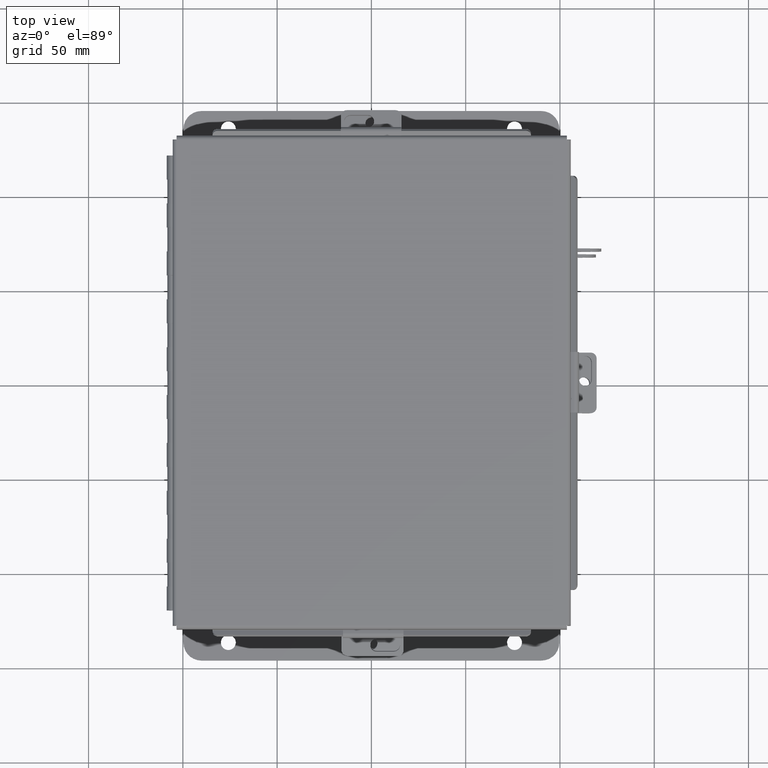
[diagram: clean part render]
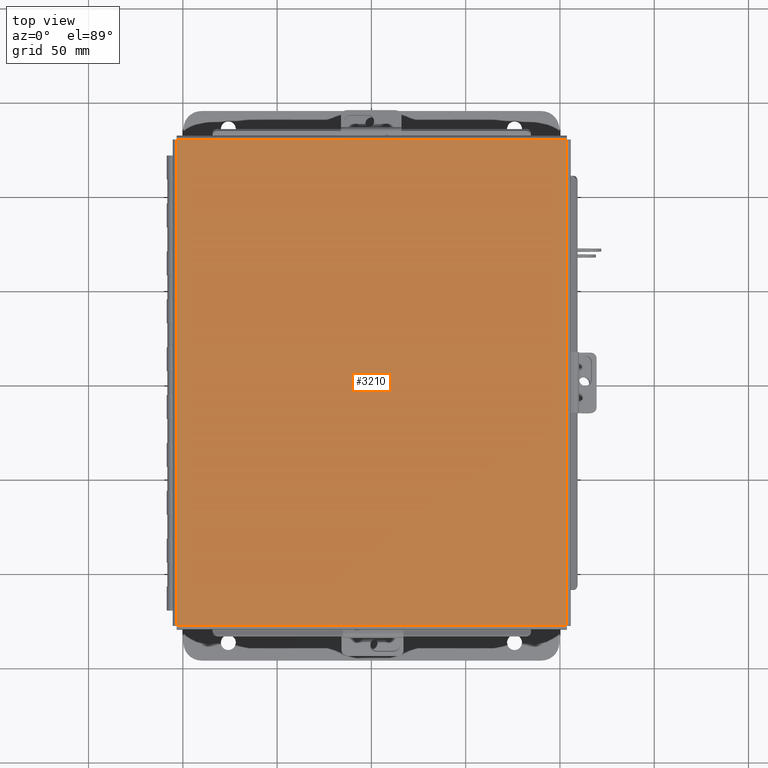
[diagram: same view with one face highlighted and labeled with its STEP entity id]
A machine part, top view. The second image highlights one B-rep face of the part: STEP entity #3210.
In plain terms, the highlighted planar face has unit normal (-0, -0, 1).
Its self-contained STEP definition (entity closure, byte-faithful):
#1061 = CARTESIAN_POINT ( 'NONE',  ( 4.068550000000000100, 5.074478932188133800, -0.07470000000000022500 ) ) ;
#1295 = LINE ( 'NONE', #6632, #4265 ) ;
#2668 = DIRECTION ( 'NONE',  ( -1.000000000000000000, 0.0000000000000000000, -0.0000000000000000000 ) ) ;
#3210 = ADVANCED_FACE ( 'NONE', ( #12430 ), #14636, .T. ) ;
#3944 = LINE ( 'NONE', #1061, #9958 ) ;
#4265 = VECTOR ( 'NONE', #7909, 39.37007874015748100 ) ;
#4562 = EDGE_CURVE ( 'NONE', #6965, #15077, #14982, .T. ) ;
#4793 = ORIENTED_EDGE ( 'NONE', *, *, #8641, .T. ) ;
#5842 = DIRECTION ( 'NONE',  ( 1.000000000000000000, 0.0000000000000000000, 0.0000000000000000000 ) ) ;
#5895 = CARTESIAN_POINT ( 'NONE',  ( 4.068550000000000100, 5.068549999999998300, -0.07470000000000022500 ) ) ;
#6135 = DIRECTION ( 'NONE',  ( -0.0000000000000000000, -1.000000000000000000, -0.0000000000000000000 ) ) ;
#6197 = EDGE_CURVE ( 'NONE', #15077, #10415, #3944, .T. ) ;
#6632 = CARTESIAN_POINT ( 'NONE',  ( 4.074478932188136500, -5.068550000000001000, -0.07469999999999993300 ) ) ;
#6965 = VERTEX_POINT ( 'NONE', #13947 ) ;
#7327 = CARTESIAN_POINT ( 'NONE',  ( -4.068549999999999200, -5.074478932188135600, -0.07469999999999994700 ) ) ;
#7576 = LINE ( 'NONE', #7327, #13521 ) ;
#7700 = EDGE_LOOP ( 'NONE', ( #16019, #8756, #4793, #8882 ) ) ;
#7909 = DIRECTION ( 'NONE',  ( -1.000000000000000000, 0.0000000000000000000, 0.0000000000000000000 ) ) ;
#8441 = VERTEX_POINT ( 'NONE', #16416 ) ;
#8641 = EDGE_CURVE ( 'NONE', #10415, #8441, #1295, .T. ) ;
#8756 = ORIENTED_EDGE ( 'NONE', *, *, #6197, .T. ) ;
#8882 = ORIENTED_EDGE ( 'NONE', *, *, #14420, .T. ) ;
#9470 = DIRECTION ( 'NONE',  ( 0.0000000000000000000, 0.0000000000000000000, -1.000000000000000000 ) ) ;
#9958 = VECTOR ( 'NONE', #6135, 39.37007874015748100 ) ;
#10415 = VERTEX_POINT ( 'NONE', #11649 ) ;
#11605 = VECTOR ( 'NONE', #5842, 39.37007874015748100 ) ;
#11649 = CARTESIAN_POINT ( 'NONE',  ( 4.068550000000001000, -5.068550000000001000, -0.07469999999999993300 ) ) ;
#12073 = AXIS2_PLACEMENT_3D ( 'NONE', #13040, #9470, #2668 ) ;
#12430 = FACE_OUTER_BOUND ( 'NONE', #7700, .T. ) ;
#13040 = CARTESIAN_POINT ( 'NONE',  ( 0.0000000000000000000, 0.0000000000000000000, -0.07470000000000000300 ) ) ;
#13521 = VECTOR ( 'NONE', #13624, 39.37007874015748100 ) ;
#13624 = DIRECTION ( 'NONE',  ( -0.0000000000000000000, 1.000000000000000000, -0.0000000000000000000 ) ) ;
#13947 = CARTESIAN_POINT ( 'NONE',  ( -4.068550000000000100, 5.068549999999998300, -0.07469999999999993300 ) ) ;
#13984 = CARTESIAN_POINT ( 'NONE',  ( -4.074478932188135600, 5.068549999999998300, -0.07469999999999993300 ) ) ;
#14420 = EDGE_CURVE ( 'NONE', #8441, #6965, #7576, .T. ) ;
#14636 = PLANE ( 'NONE',  #12073 ) ;
#14982 = LINE ( 'NONE', #13984, #11605 ) ;
#15077 = VERTEX_POINT ( 'NONE', #5895 ) ;
#16019 = ORIENTED_EDGE ( 'NONE', *, *, #4562, .T. ) ;
#16416 = CARTESIAN_POINT ( 'NONE',  ( -4.068549999999999200, -5.068550000000001000, -0.07469999999999994700 ) ) ;